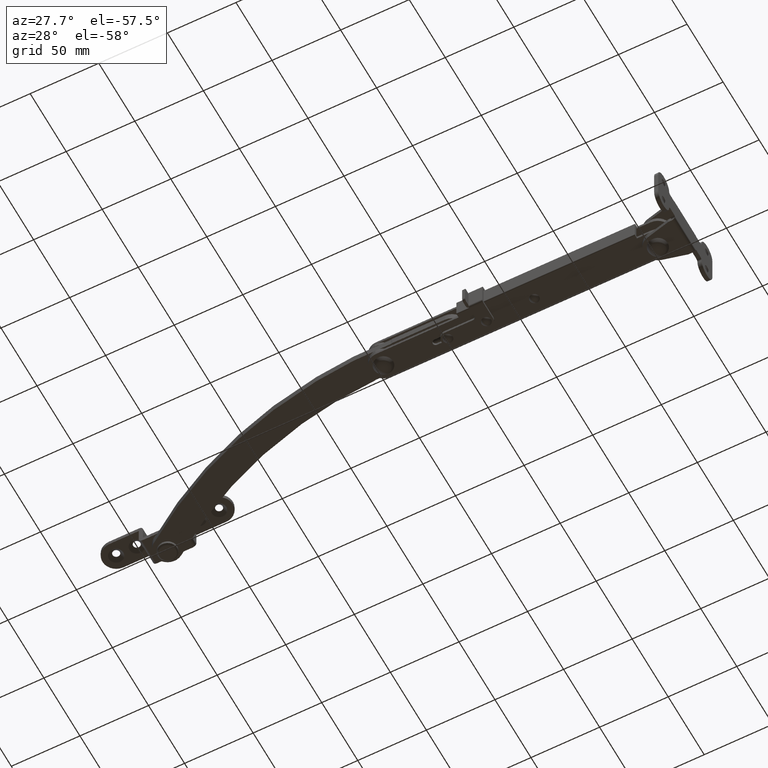
[diagram: clean part render]
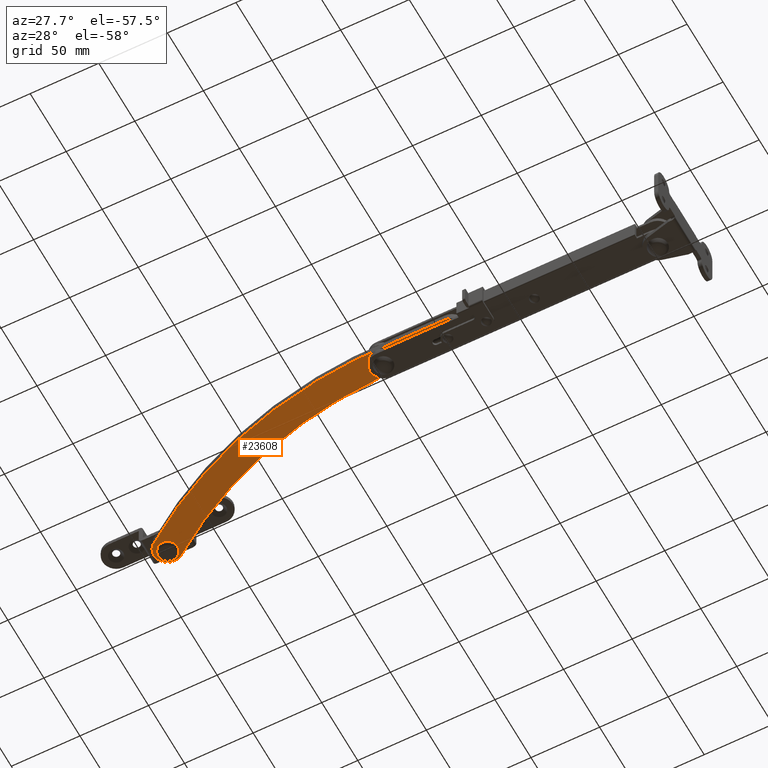
[diagram: same view with one face highlighted and labeled with its STEP entity id]
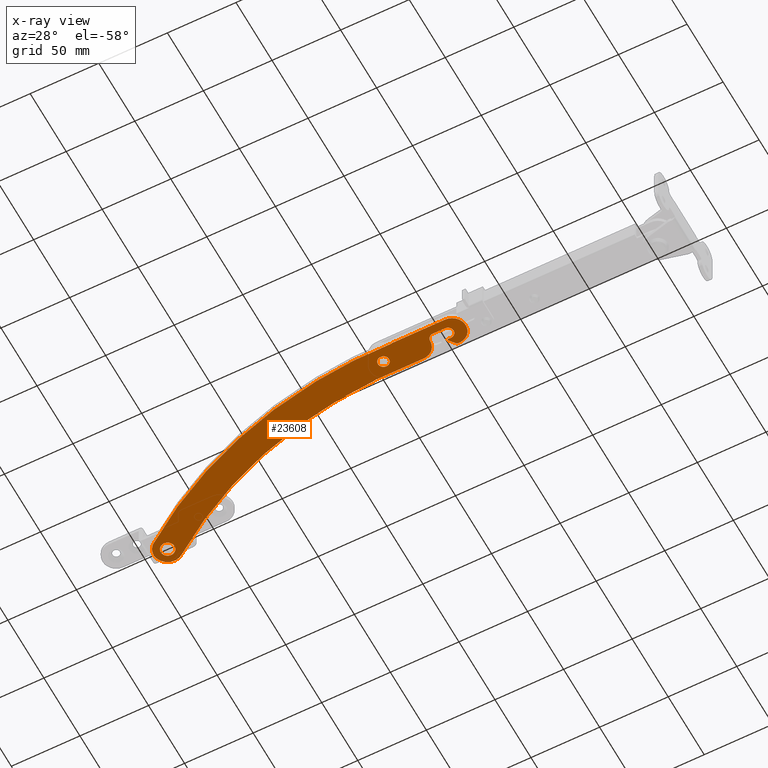
[diagram: x-ray of the same camera — body ghosted, the highlighted face saturated]
A machine part, auxiliary view. The second image highlights one B-rep face of the part: STEP entity #23608.
The next image is the same camera in x-ray: the body ghosted, the highlighted face saturated — about 0% of this face is hidden behind the body in this view.
In plain terms, the highlighted face is a freeform B-spline surface patch.
Its self-contained STEP definition (entity closure, byte-faithful):
#22420=CARTESIAN_POINT('',(-199.752722409661400,4.042445933289144,-2.499999999999945));
#22421=VERTEX_POINT('',#22420);
#22427=CARTESIAN_POINT('',(-195.949969000000010,0.0,-2.499999999999945));
#22428=VERTEX_POINT('',#22427);
#22429=CARTESIAN_POINT('',(-195.949969000000010,0.0,-2.499999999999945));
#22430=CARTESIAN_POINT('',(-195.949969000000100,3.809859561105794,-2.499999999999945));
#22431=CARTESIAN_POINT('',(-199.752722409661370,4.042445933289145,-2.499999999999945));
#22439=(BOUNDED_CURVE()B_SPLINE_CURVE(2,(#22429,#22430,#22431),.UNSPECIFIED.,.F.,.U.)B_SPLINE_CURVE_WITH_KNOTS((3,3),(0.500000000000000,0.739332961796144),.UNSPECIFIED.)CURVE()GEOMETRIC_REPRESENTATION_ITEM()RATIONAL_B_SPLINE_CURVE((1.0,0.719603993805482,0.976072040717715))REPRESENTATION_ITEM(''));
#22440=EDGE_CURVE('',#22428,#22421,#22439,.T.);
#22442=CARTESIAN_POINT('',(-200.478007650692890,-4.021688581733256,-2.499999999999945));
#22443=VERTEX_POINT('',#22442);
#22444=CARTESIAN_POINT('',(-200.478007650692890,-4.021688581733256,-2.499999999999945));
#22445=CARTESIAN_POINT('',(-200.239826684926810,-4.050000000000000,-2.499999999999945));
#22446=CARTESIAN_POINT('',(-199.999968999999990,-4.050000000000000,-2.499999999999945));
#22447=CARTESIAN_POINT('',(-195.949969000000010,-4.050000000000001,-2.499999999999945));
#22448=CARTESIAN_POINT('',(-195.949969000000010,0.0,-2.499999999999945));
#22456=(BOUNDED_CURVE()B_SPLINE_CURVE(2,(#22444,#22445,#22446,#22447,#22448),.UNSPECIFIED.,.F.,.U.)B_SPLINE_CURVE_WITH_KNOTS((3,2,3),(0.229562473487650,0.250000000000000,0.500000000000000),.UNSPECIFIED.)CURVE()GEOMETRIC_REPRESENTATION_ITEM()RATIONAL_B_SPLINE_CURVE((0.956026754133016,0.976055948300850,1.0,0.707106781186548,1.0))REPRESENTATION_ITEM(''));
#22457=EDGE_CURVE('',#22443,#22428,#22456,.T.);
#22501=CARTESIAN_POINT('',(-204.049969000000000,0.0,-2.499999999999945));
#22502=VERTEX_POINT('',#22501);
#22503=CARTESIAN_POINT('',(-204.049969000000000,0.0,-2.499999999999945));
#22504=CARTESIAN_POINT('',(-204.049968999999920,-3.597106829503007,-2.499999999999946));
#22505=CARTESIAN_POINT('',(-200.478007650692940,-4.021688581733256,-2.499999999999945));
#22513=(BOUNDED_CURVE()B_SPLINE_CURVE(2,(#22503,#22504,#22505),.UNSPECIFIED.,.F.,.U.)B_SPLINE_CURVE_WITH_KNOTS((3,3),(0.0,0.229562473487650),.UNSPECIFIED.)CURVE()GEOMETRIC_REPRESENTATION_ITEM()RATIONAL_B_SPLINE_CURVE((1.0,0.731050832885698,0.956026754133016))REPRESENTATION_ITEM(''));
#22514=EDGE_CURVE('',#22502,#22443,#22513,.T.);
#22516=CARTESIAN_POINT('',(-199.752722409661400,4.042445933289144,-2.499999999999945));
#22517=CARTESIAN_POINT('',(-199.876230303403670,4.050000000000000,-2.499999999999945));
#22518=CARTESIAN_POINT('',(-199.999968999999990,4.050000000000000,-2.499999999999945));
#22519=CARTESIAN_POINT('',(-204.049968999999980,4.050000000000001,-2.499999999999945));
#22520=CARTESIAN_POINT('',(-204.049969000000000,0.0,-2.499999999999945));
#22528=(BOUNDED_CURVE()B_SPLINE_CURVE(2,(#22516,#22517,#22518,#22519,#22520),.UNSPECIFIED.,.F.,.U.)B_SPLINE_CURVE_WITH_KNOTS((3,2,3),(0.739332961796144,0.750000000000000,1.0),.UNSPECIFIED.)CURVE()GEOMETRIC_REPRESENTATION_ITEM()RATIONAL_B_SPLINE_CURVE((0.976072040717716,0.987502787381066,1.0,0.707106781186548,1.0))REPRESENTATION_ITEM(''));
#22529=EDGE_CURVE('',#22421,#22502,#22528,.T.);
#22606=CARTESIAN_POINT('',(-389.734429300058880,67.319851991970793,-2.499999999999945));
#22607=VERTEX_POINT('',#22606);
#22613=CARTESIAN_POINT('',(-385.039672000000000,62.329178000000098,-2.499999999999945));
#22614=VERTEX_POINT('',#22613);
#22615=CARTESIAN_POINT('',(-385.039672000000000,62.329178000000098,-2.499999999999945));
#22616=CARTESIAN_POINT('',(-385.039672000000050,67.032708330247871,-2.499999999999945));
#22617=CARTESIAN_POINT('',(-389.734429300058880,67.319851991970793,-2.499999999999945));
#22625=(BOUNDED_CURVE()B_SPLINE_CURVE(2,(#22615,#22616,#22617),.UNSPECIFIED.,.F.,.U.)B_SPLINE_CURVE_WITH_KNOTS((3,3),(0.500000000000000,0.739332962085226),.UNSPECIFIED.)CURVE()GEOMETRIC_REPRESENTATION_ITEM()RATIONAL_B_SPLINE_CURVE((1.0,0.719603993466801,0.976072041337273))REPRESENTATION_ITEM(''));
#22626=EDGE_CURVE('',#22614,#22607,#22625,.T.);
#22628=CARTESIAN_POINT('',(-390.629843176856920,57.364130368606503,-2.499999999999945));
#22629=VERTEX_POINT('',#22628);
#22630=CARTESIAN_POINT('',(-390.629843176856920,57.364130368606489,-2.499999999999945));
#22631=CARTESIAN_POINT('',(-390.335792601870540,57.329178000000098,-2.499999999999945));
#22632=CARTESIAN_POINT('',(-390.039672000000000,57.329178000000098,-2.499999999999945));
#22633=CARTESIAN_POINT('',(-385.039672000000050,57.329178000000084,-2.499999999999945));
#22634=CARTESIAN_POINT('',(-385.039672000000000,62.329178000000098,-2.499999999999945));
#22642=(BOUNDED_CURVE()B_SPLINE_CURVE(2,(#22630,#22631,#22632,#22633,#22634),.UNSPECIFIED.,.F.,.U.)B_SPLINE_CURVE_WITH_KNOTS((3,2,3),(0.229562473272392,0.250000000000000,0.500000000000000),.UNSPECIFIED.)CURVE()GEOMETRIC_REPRESENTATION_ITEM()RATIONAL_B_SPLINE_CURVE((0.956026753711101,0.976055948048659,1.0,0.707106781186548,1.0))REPRESENTATION_ITEM(''));
#22643=EDGE_CURVE('',#22629,#22614,#22642,.T.);
#22687=CARTESIAN_POINT('',(-395.039672000000000,62.329178000000098,-2.499999999999945));
#22688=VERTEX_POINT('',#22687);
#22689=CARTESIAN_POINT('',(-395.039672000000000,62.329178000000098,-2.499999999999945));
#22690=CARTESIAN_POINT('',(-395.039672000000000,57.888305376680172,-2.499999999999946));
#22691=CARTESIAN_POINT('',(-390.629843176856920,57.364130368606489,-2.499999999999945));
#22699=(BOUNDED_CURVE()B_SPLINE_CURVE(2,(#22689,#22690,#22691),.UNSPECIFIED.,.F.,.U.)B_SPLINE_CURVE_WITH_KNOTS((3,3),(0.0,0.229562473272392),.UNSPECIFIED.)CURVE()GEOMETRIC_REPRESENTATION_ITEM()RATIONAL_B_SPLINE_CURVE((1.0,0.731050833137888,0.956026753711101))REPRESENTATION_ITEM(''));
#22700=EDGE_CURVE('',#22688,#22629,#22699,.T.);
#22702=CARTESIAN_POINT('',(-389.734429300058930,67.319851991970793,-2.499999999999945));
#22703=CARTESIAN_POINT('',(-389.886908181233930,67.329178000000084,-2.499999999999945));
#22704=CARTESIAN_POINT('',(-390.039672000000000,67.329178000000098,-2.499999999999945));
#22705=CARTESIAN_POINT('',(-395.039672000000000,67.329178000000098,-2.499999999999945));
#22706=CARTESIAN_POINT('',(-395.039672000000000,62.329178000000098,-2.499999999999945));
#22714=(BOUNDED_CURVE()B_SPLINE_CURVE(2,(#22702,#22703,#22704,#22705,#22706),.UNSPECIFIED.,.F.,.U.)B_SPLINE_CURVE_WITH_KNOTS((3,2,3),(0.739332962085225,0.750000000000000,1.0),.UNSPECIFIED.)CURVE()GEOMETRIC_REPRESENTATION_ITEM()RATIONAL_B_SPLINE_CURVE((0.976072041337271,0.987502787719746,1.0,0.707106781186548,1.0))REPRESENTATION_ITEM(''));
#22715=EDGE_CURVE('',#22607,#22688,#22714,.T.);
#22767=CARTESIAN_POINT('',(-161.891604911397000,-4.096090723936130,-2.499999999999945));
#22768=VERTEX_POINT('',#22767);
#22774=CARTESIAN_POINT('',(-165.992293828772010,0.003207617239024,-2.499999999999945));
#22775=VERTEX_POINT('',#22774);
#22776=CARTESIAN_POINT('',(-165.992293828772290,0.003207617239025,-2.499999999999945));
#22777=CARTESIAN_POINT('',(-165.991592229996630,-4.096779699219845,-2.499999999999944));
#22778=CARTESIAN_POINT('',(-161.891604911397000,-4.096090723936151,-2.499999999999945));
#22786=(BOUNDED_CURVE()B_SPLINE_CURVE(2,(#22776,#22777,#22778),.UNSPECIFIED.,.F.,.U.)CURVE()GEOMETRIC_REPRESENTATION_ITEM()QUASI_UNIFORM_CURVE()RATIONAL_B_SPLINE_CURVE((1.0,0.707107869744780,1.0))REPRESENTATION_ITEM(''));
#22787=EDGE_CURVE('',#22775,#22768,#22786,.T.);
#22809=CARTESIAN_POINT('',(-152.991604576599000,-4.094595138761060,-2.499999999999945));
#22810=VERTEX_POINT('',#22809);
#22816=CARTESIAN_POINT('',(-152.991604576599000,-4.094595138761060,-2.499999999999945));
#22817=CARTESIAN_POINT('',(-161.891604911397000,-4.096090723936130,-2.499999999999945));
#22818=QUASI_UNIFORM_CURVE('',1,(#22816,#22817),.UNSPECIFIED.,.F.,.U.);
#22819=EDGE_CURVE('',#22810,#22768,#22818,.T.);
#22862=CARTESIAN_POINT('',(-152.992980060619490,4.105426376480540,-2.499999999999945));
#22863=VERTEX_POINT('',#22862);
#22869=CARTESIAN_POINT('',(-152.991604576599000,-4.094595138761059,-2.499999999999945));
#22870=CARTESIAN_POINT('',(-150.624451975830340,-4.094211428268318,-2.499999999999945));
#22871=CARTESIAN_POINT('',(-149.441215692187000,-2.044000834297593,-2.499999999999945));
#22872=CARTESIAN_POINT('',(-148.257979408543690,0.006209759673132,-2.499999999999945));
#22873=CARTESIAN_POINT('',(-149.441903436438110,2.056023282590268,-2.499999999999945));
#22874=CARTESIAN_POINT('',(-150.625827464332620,4.105836805507403,-2.499999999999945));
#22875=CARTESIAN_POINT('',(-152.992980060619490,4.105426376480549,-2.499999999999945));
#22883=(BOUNDED_CURVE()B_SPLINE_CURVE(2,(#22869,#22870,#22871,#22872,#22873,#22874,#22875),.UNSPECIFIED.,.F.,.U.)B_SPLINE_CURVE_WITH_KNOTS((3,2,2,3),(0.0,0.333333333333333,0.666666666666667,1.0),.UNSPECIFIED.)CURVE()GEOMETRIC_REPRESENTATION_ITEM()RATIONAL_B_SPLINE_CURVE((1.0,0.866024463182579,1.0,0.866024463182579,1.0,0.866024463182579,1.0))REPRESENTATION_ITEM(''));
#22884=EDGE_CURVE('',#22810,#22863,#22883,.T.);
#22902=CARTESIAN_POINT('',(-155.494548496868990,4.104992641747895,-2.499999999999945));
#22903=VERTEX_POINT('',#22902);
#22909=CARTESIAN_POINT('',(-155.494548496868990,4.104992641747895,-2.499999999999945));
#22910=CARTESIAN_POINT('',(-152.992980060619490,4.105426376480540,-2.499999999999945));
#22911=QUASI_UNIFORM_CURVE('',1,(#22909,#22910),.UNSPECIFIED.,.F.,.U.);
#22912=EDGE_CURVE('',#22903,#22863,#22911,.T.);
#22930=CARTESIAN_POINT('',(-155.495111645176000,5.104995582170590,-2.499999999999945));
#22931=VERTEX_POINT('',#22930);
#22937=CARTESIAN_POINT('',(-155.495111645176000,5.104995582170590,-2.499999999999945));
#22938=CARTESIAN_POINT('',(-155.494548496868990,4.104992641747895,-2.499999999999945));
#22939=QUASI_UNIFORM_CURVE('',1,(#22937,#22938),.UNSPECIFIED.,.F.,.U.);
#22940=EDGE_CURVE('',#22931,#22903,#22939,.T.);
#22958=CARTESIAN_POINT('',(-151.604273395805510,9.875120801763650,-2.499999999999945));
#22959=VERTEX_POINT('',#22958);
#22965=CARTESIAN_POINT('',(-151.604273395805510,9.875120801763650,-2.499999999999945));
#22966=CARTESIAN_POINT('',(-155.495111645176000,5.104995582170590,-2.499999999999945));
#22967=QUASI_UNIFORM_CURVE('',1,(#22965,#22966),.UNSPECIFIED.,.F.,.U.);
#22968=EDGE_CURVE('',#22959,#22931,#22967,.T.);
#23011=CARTESIAN_POINT('',(-149.967174670438000,-9.994073230658492,-2.499999999999945));
#23012=VERTEX_POINT('',#23011);
#23018=CARTESIAN_POINT('',(-149.967174670438000,-9.994073230658492,-2.499999999999945));
#23019=CARTESIAN_POINT('',(-143.833896049889350,-9.978649185365187,-2.499999999999946));
#23020=CARTESIAN_POINT('',(-141.067397372090600,-4.504726496452794,-2.499999999999945));
#23021=CARTESIAN_POINT('',(-138.300898694291790,0.969196192459599,-2.499999999999946));
#23022=CARTESIAN_POINT('',(-141.926040939578090,5.916487192582053,-2.499999999999945));
#23023=CARTESIAN_POINT('',(-145.551183184864410,10.863778192704507,-2.499999999999946));
#23024=CARTESIAN_POINT('',(-151.604273395805510,9.875120801763622,-2.499999999999945));
#23032=(BOUNDED_CURVE()B_SPLINE_CURVE(2,(#23018,#23019,#23020,#23021,#23022,#23023,#23024),.UNSPECIFIED.,.F.,.U.)B_SPLINE_CURVE_WITH_KNOTS((3,2,2,3),(0.0,0.333333333333333,0.666666666666667,1.0),.UNSPECIFIED.)CURVE()GEOMETRIC_REPRESENTATION_ITEM()RATIONAL_B_SPLINE_CURVE((1.0,0.852439200869313,1.0,0.852439200869313,1.0,0.852439200869313,1.0))REPRESENTATION_ITEM(''));
#23033=EDGE_CURVE('',#23012,#22959,#23032,.T.);
#23051=CARTESIAN_POINT('',(-188.631841210929510,-10.000602722502681,-2.499999999999945));
#23052=VERTEX_POINT('',#23051);
#23058=CARTESIAN_POINT('',(-188.631841210929510,-10.000602722502681,-2.499999999999945));
#23059=CARTESIAN_POINT('',(-149.967174670438000,-9.994073230658492,-2.499999999999945));
#23060=QUASI_UNIFORM_CURVE('',1,(#23058,#23059),.UNSPECIFIED.,.F.,.U.);
#23061=EDGE_CURVE('',#23052,#23012,#23060,.T.);
#23102=CARTESIAN_POINT('',(-188.635328099598010,-9.800662946603380,-2.499999999999945));
#23103=VERTEX_POINT('',#23102);
#23109=CARTESIAN_POINT('',(-188.635328099598010,-9.800662946603383,-2.499999999999945));
#23110=CARTESIAN_POINT('',(-188.733556743992860,-9.804073535669447,-2.499999999999945));
#23111=CARTESIAN_POINT('',(-188.731842894739800,-9.902346428260298,-2.499999999999945));
#23112=CARTESIAN_POINT('',(-188.730129045486620,-10.000619320851149,-2.499999999999945));
#23113=CARTESIAN_POINT('',(-188.631841210929510,-10.000602722502689,-2.499999999999945));
#23121=(BOUNDED_CURVE()B_SPLINE_CURVE(2,(#23109,#23110,#23111,#23112,#23113),.UNSPECIFIED.,.F.,.U.)B_SPLINE_CURVE_WITH_KNOTS((3,2,3),(0.0,0.500000000000000,1.0),.UNSPECIFIED.)CURVE()GEOMETRIC_REPRESENTATION_ITEM()RATIONAL_B_SPLINE_CURVE((1.0,0.713185878240497,1.0,0.713185878240497,1.0))REPRESENTATION_ITEM(''));
#23122=EDGE_CURVE('',#23103,#23052,#23121,.T.);
#23157=CARTESIAN_POINT('',(-395.932670892218030,54.131489166774003,-2.499999999999945));
#23158=VERTEX_POINT('',#23157);
#23164=CARTESIAN_POINT('',(-395.932670892218080,54.131489166774067,-2.499999999999945));
#23165=CARTESIAN_POINT('',(-303.371207799041030,-13.784398436252850,-2.499999999999945));
#23166=CARTESIAN_POINT('',(-188.635328099598010,-9.800662946603367,-2.499999999999945));
#23174=(BOUNDED_CURVE()B_SPLINE_CURVE(2,(#23164,#23165,#23166),.UNSPECIFIED.,.F.,.U.)CURVE()GEOMETRIC_REPRESENTATION_ITEM()QUASI_UNIFORM_CURVE()RATIONAL_B_SPLINE_CURVE((1.0,0.944784642176282,1.0))REPRESENTATION_ITEM(''));
#23175=EDGE_CURVE('',#23158,#23103,#23174,.T.);
#23210=CARTESIAN_POINT('',(-395.946060059229010,54.143288464509403,-2.499999999999945));
#23211=VERTEX_POINT('',#23210);
#23217=CARTESIAN_POINT('',(-395.946060059229180,54.143288464509183,-2.499999999999945));
#23218=CARTESIAN_POINT('',(-395.939894020984180,54.136789052763667,-2.499999999999945));
#23219=CARTESIAN_POINT('',(-395.932670892218030,54.131489166774010,-2.499999999999945));
#23227=(BOUNDED_CURVE()B_SPLINE_CURVE(2,(#23217,#23218,#23219),.UNSPECIFIED.,.F.,.U.)CURVE()GEOMETRIC_REPRESENTATION_ITEM()QUASI_UNIFORM_CURVE()RATIONAL_B_SPLINE_CURVE((1.0,0.996010878199911,1.0))REPRESENTATION_ITEM(''));
#23228=EDGE_CURVE('',#23211,#23158,#23227,.T.);
#23263=CARTESIAN_POINT('',(-395.959951515913020,54.155453915347202,-2.499999999999945));
#23264=VERTEX_POINT('',#23263);
#23270=CARTESIAN_POINT('',(-395.946060059229010,54.143288464509432,-2.499999999999945));
#23271=CARTESIAN_POINT('',(-395.952441778948750,54.150015218781007,-2.499999999999945));
#23272=CARTESIAN_POINT('',(-395.959951515912910,54.155453915347280,-2.499999999999945));
#23280=(BOUNDED_CURVE()B_SPLINE_CURVE(2,(#23270,#23271,#23272),.UNSPECIFIED.,.F.,.U.)CURVE()GEOMETRIC_REPRESENTATION_ITEM()QUASI_UNIFORM_CURVE()RATIONAL_B_SPLINE_CURVE((1.0,0.995728743648471,1.0))REPRESENTATION_ITEM(''));
#23281=EDGE_CURVE('',#23211,#23264,#23280,.T.);
#23322=CARTESIAN_POINT('',(-384.371410625373020,70.454998101325700,-2.499999999999945));
#23323=VERTEX_POINT('',#23322);
#23329=CARTESIAN_POINT('',(-384.371410625373410,70.454998101325245,-2.499999999999945));
#23330=CARTESIAN_POINT('',(-392.500457132577200,76.128186322258287,-2.499999999999945));
#23331=CARTESIAN_POINT('',(-398.244504629345900,68.049053939305011,-2.499999999999945));
#23332=CARTESIAN_POINT('',(-403.988552126114430,59.969921556351750,-2.499999999999945));
#23333=CARTESIAN_POINT('',(-395.959951515913020,54.155453915347103,-2.499999999999945));
#23341=(BOUNDED_CURVE()B_SPLINE_CURVE(2,(#23329,#23330,#23331,#23332,#23333),.UNSPECIFIED.,.F.,.U.)B_SPLINE_CURVE_WITH_KNOTS((3,2,3),(0.0,0.500000000000000,1.0),.UNSPECIFIED.)CURVE()GEOMETRIC_REPRESENTATION_ITEM()RATIONAL_B_SPLINE_CURVE((1.0,0.710191339439909,1.0,0.710191339439909,1.0))REPRESENTATION_ITEM(''));
#23342=EDGE_CURVE('',#23323,#23264,#23341,.T.);
#23377=CARTESIAN_POINT('',(-211.270921621366990,10.199935711989699,-2.499999999999945));
#23378=VERTEX_POINT('',#23377);
#23384=CARTESIAN_POINT('',(-384.371410625373070,70.454998101325771,-2.499999999999945));
#23385=CARTESIAN_POINT('',(-307.111512999859880,13.638197597696639,-2.499999999999945));
#23386=CARTESIAN_POINT('',(-211.270921621366990,10.199935711989680,-2.499999999999945));
#23394=(BOUNDED_CURVE()B_SPLINE_CURVE(2,(#23384,#23385,#23386),.UNSPECIFIED.,.F.,.U.)CURVE()GEOMETRIC_REPRESENTATION_ITEM()QUASI_UNIFORM_CURVE()RATIONAL_B_SPLINE_CURVE((1.0,0.955597511157702,1.0))REPRESENTATION_ITEM(''));
#23395=EDGE_CURVE('',#23323,#23378,#23394,.T.);
#23436=CARTESIAN_POINT('',(-211.274506794878990,10.0,-2.499999999999945));
#23437=VERTEX_POINT('',#23436);
#23443=CARTESIAN_POINT('',(-211.274506794878990,10.000000000000011,-2.499999999999945));
#23444=CARTESIAN_POINT('',(-211.176283882151210,10.000000000000005,-2.499999999999945));
#23445=CARTESIAN_POINT('',(-211.174522868173310,10.098207125069930,-2.499999999999945));
#23446=CARTESIAN_POINT('',(-211.172761854195410,10.196414250139854,-2.499999999999945));
#23447=CARTESIAN_POINT('',(-211.270921621366990,10.199935711989699,-2.499999999999945));
#23455=(BOUNDED_CURVE()B_SPLINE_CURVE(2,(#23443,#23444,#23445,#23446,#23447),.UNSPECIFIED.,.F.,.U.)B_SPLINE_CURVE_WITH_KNOTS((3,2,3),(0.0,0.500000000000000,1.0),.UNSPECIFIED.)CURVE()GEOMETRIC_REPRESENTATION_ITEM()RATIONAL_B_SPLINE_CURVE((1.0,0.713417391609112,1.0,0.713417391609112,1.0))REPRESENTATION_ITEM(''));
#23456=EDGE_CURVE('',#23437,#23378,#23455,.T.);
#23474=CARTESIAN_POINT('',(-175.819303307804490,10.0,-2.499999999999945));
#23475=VERTEX_POINT('',#23474);
#23481=CARTESIAN_POINT('',(-175.819303307804490,10.0,-2.499999999999945));
#23482=CARTESIAN_POINT('',(-211.274506794878990,10.0,-2.499999999999945));
#23483=QUASI_UNIFORM_CURVE('',1,(#23481,#23482),.UNSPECIFIED.,.F.,.U.);
#23484=EDGE_CURVE('',#23475,#23437,#23483,.T.);
#23518=CARTESIAN_POINT('',(-165.992293828772010,0.003207617239020,-2.499999999999945));
#23519=CARTESIAN_POINT('',(-165.993975411926870,9.830005846870508,-2.499999999999945));
#23520=CARTESIAN_POINT('',(-175.819303307804490,10.0,-2.499999999999945));
#23528=(BOUNDED_CURVE()B_SPLINE_CURVE(2,(#23518,#23519,#23520),.UNSPECIFIED.,.F.,.U.)CURVE()GEOMETRIC_REPRESENTATION_ITEM()QUASI_UNIFORM_CURVE()RATIONAL_B_SPLINE_CURVE((1.0,0.713256662701052,1.0))REPRESENTATION_ITEM(''));
#23529=EDGE_CURVE('',#22775,#23475,#23528,.T.);
#23572=CARTESIAN_POINT('',(-127.004306313644800,76.361942272251213,-2.500000000000000));
#23573=CARTESIAN_POINT('',(-413.086074087555800,76.361942272251213,-2.500000000000000));
#23574=CARTESIAN_POINT('',(-127.004306313644800,-14.109190064269290,-2.500000000000000));
#23575=CARTESIAN_POINT('',(-413.086074087555800,-14.109190064269290,-2.500000000000000));
#23576=B_SPLINE_SURFACE_WITH_KNOTS('',1,1,((#23572,#23574),(#23573,#23575)),.UNSPECIFIED.,.F.,.F.,.U.,(2,2),(2,2),(0.0,286.081767773911000),(0.0,90.471132336520498),.UNSPECIFIED.);
#23577=ORIENTED_EDGE('',*,*,#23529,.F.);
#23578=ORIENTED_EDGE('',*,*,#22787,.T.);
#23579=ORIENTED_EDGE('',*,*,#22819,.F.);
#23580=ORIENTED_EDGE('',*,*,#22884,.T.);
#23581=ORIENTED_EDGE('',*,*,#22912,.F.);
#23582=ORIENTED_EDGE('',*,*,#22940,.F.);
#23583=ORIENTED_EDGE('',*,*,#22968,.F.);
#23584=ORIENTED_EDGE('',*,*,#23033,.F.);
#23585=ORIENTED_EDGE('',*,*,#23061,.F.);
#23586=ORIENTED_EDGE('',*,*,#23122,.F.);
#23587=ORIENTED_EDGE('',*,*,#23175,.F.);
#23588=ORIENTED_EDGE('',*,*,#23228,.F.);
#23589=ORIENTED_EDGE('',*,*,#23281,.T.);
#23590=ORIENTED_EDGE('',*,*,#23342,.F.);
#23591=ORIENTED_EDGE('',*,*,#23395,.T.);
#23592=ORIENTED_EDGE('',*,*,#23456,.F.);
#23593=ORIENTED_EDGE('',*,*,#23484,.F.);
#23594=EDGE_LOOP('',(#23577,#23578,#23579,#23580,#23581,#23582,#23583,#23584,#23585,#23586,#23587,#23588,#23589,#23590,#23591,#23592,#23593));
#23595=FACE_OUTER_BOUND('',#23594,.T.);
#23596=ORIENTED_EDGE('',*,*,#22626,.T.);
#23597=ORIENTED_EDGE('',*,*,#22715,.T.);
#23598=ORIENTED_EDGE('',*,*,#22700,.T.);
#23599=ORIENTED_EDGE('',*,*,#22643,.T.);
#23600=EDGE_LOOP('',(#23596,#23597,#23598,#23599));
#23601=FACE_BOUND('',#23600,.T.);
#23602=ORIENTED_EDGE('',*,*,#22440,.T.);
#23603=ORIENTED_EDGE('',*,*,#22529,.T.);
#23604=ORIENTED_EDGE('',*,*,#22514,.T.);
#23605=ORIENTED_EDGE('',*,*,#22457,.T.);
#23606=EDGE_LOOP('',(#23602,#23603,#23604,#23605));
#23607=FACE_BOUND('',#23606,.T.);
#23608=ADVANCED_FACE('',(#23595,#23601,#23607),#23576,.F.);